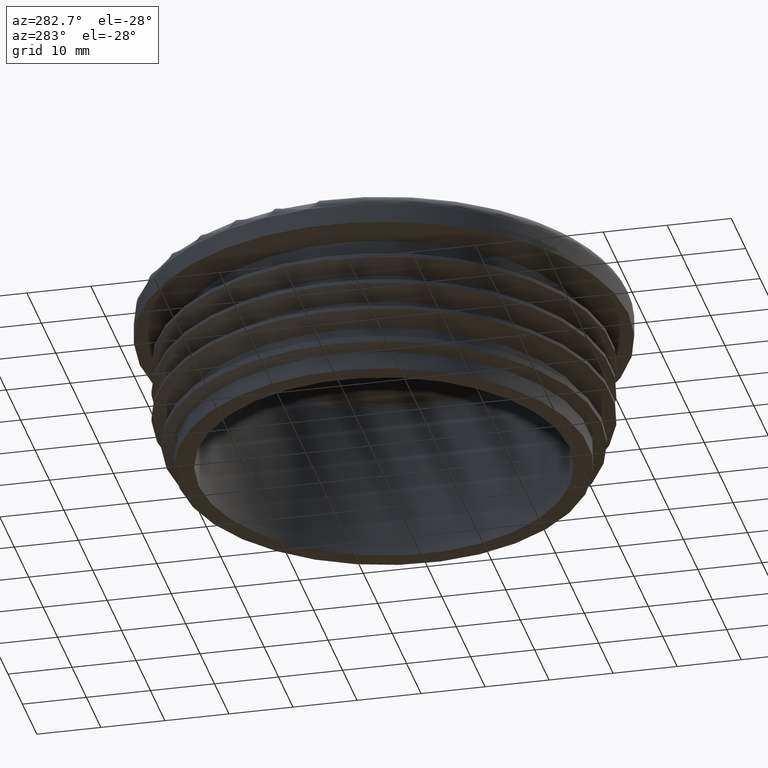
[diagram: clean part render]
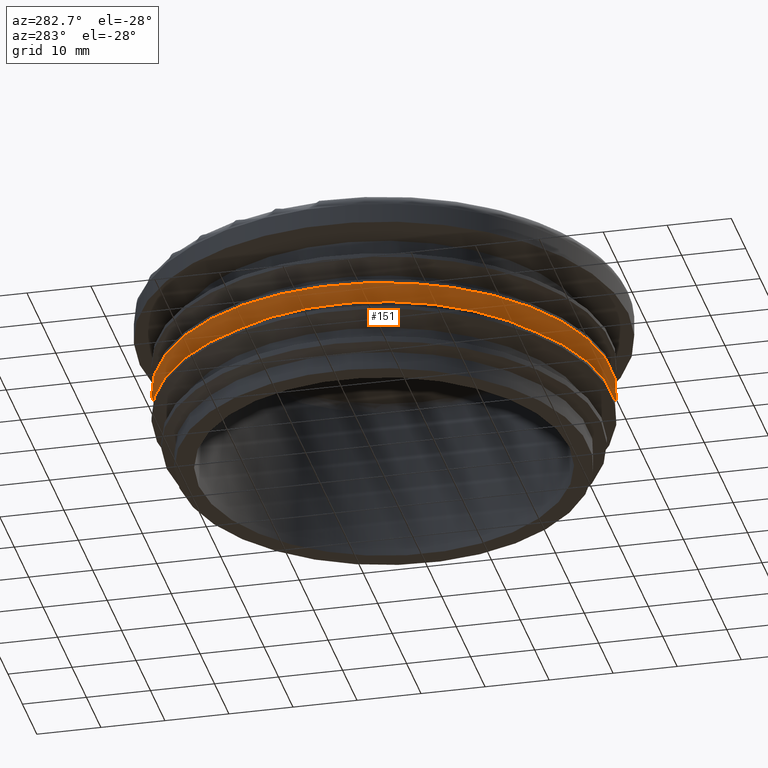
[diagram: same view with one face highlighted and labeled with its STEP entity id]
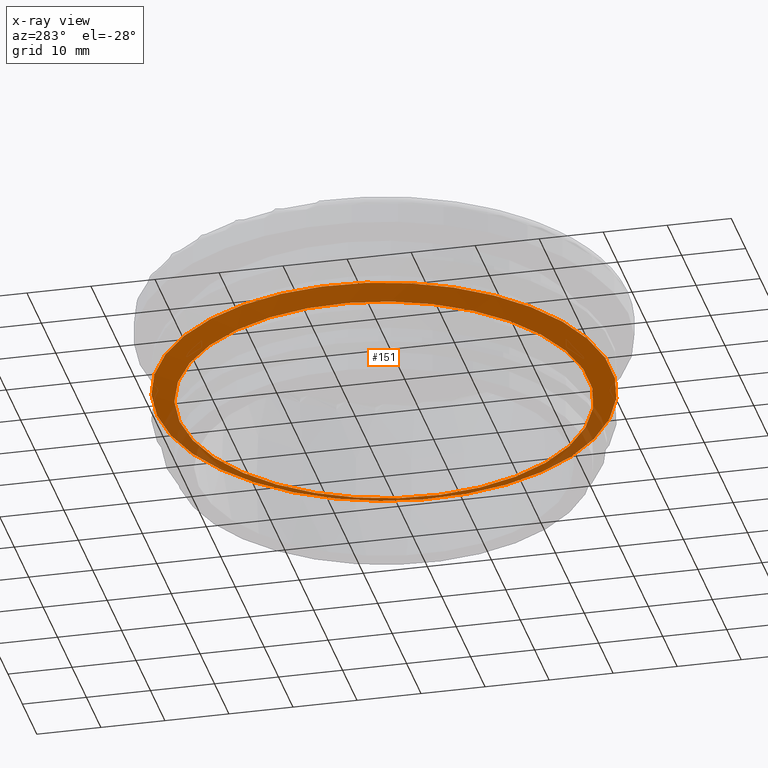
[diagram: x-ray of the same camera — body ghosted, the highlighted face saturated]
A machine part, auxiliary view. The second image highlights one B-rep face of the part: STEP entity #151.
The next image is the same camera in x-ray: the body ghosted, the highlighted face saturated — about 11% of this face is hidden behind the body in this view.
In plain terms, the highlighted conical surface has half-angle 68 deg.
Its self-contained STEP definition (entity closure, byte-faithful):
#151 = ADVANCED_FACE( '', ( #339, #340 ), #341, .T. );
#339 = FACE_BOUND( '', #811, .T. );
#340 = FACE_OUTER_BOUND( '', #812, .T. );
#341 = CONICAL_SURFACE( '', #813, 35.4500000000000, 1.18682389135615 );
#811 = EDGE_LOOP( '', ( #1481 ) );
#812 = EDGE_LOOP( '', ( #1482 ) );
#813 = AXIS2_PLACEMENT_3D( '', #1483, #1484, #1485 );
#1481 = ORIENTED_EDGE( '', *, *, #1691, .F. );
#1482 = ORIENTED_EDGE( '', *, *, #1692, .T. );
#1483 = CARTESIAN_POINT( '', ( 0.000000000000000, -5.56333046184742E-016, 12.9140917904230 ) );
#1484 = DIRECTION( '', ( 0.000000000000000, 6.12303176911189E-017, 1.00000000000000 ) );
#1485 = DIRECTION( '', ( 0.000000000000000, -1.00000000000000, 6.12303176911189E-017 ) );
#1691 = EDGE_CURVE( '', #1979, #1979, #1980, .T. );
#1692 = EDGE_CURVE( '', #1981, #1981, #1982, .T. );
#1979 = VERTEX_POINT( '', #3331 );
#1980 = CIRCLE( '', #3332, 31.9500000000000 );
#1981 = VERTEX_POINT( '', #3333 );
#1982 = CIRCLE( '', #3334, 35.4500000000000 );
#3331 = CARTESIAN_POINT( '', ( 0.000000000000000, 31.9500000000000, 11.5000000000000 ) );
#3332 = AXIS2_PLACEMENT_3D( '', #3443, #3444, #3445 );
#3333 = CARTESIAN_POINT( '', ( 0.000000000000000, 35.4500000000000, 12.9140917904230 ) );
#3334 = AXIS2_PLACEMENT_3D( '', #3446, #3447, #3448 );
#3443 = CARTESIAN_POINT( '', ( 0.000000000000000, -6.42918335756748E-016, 11.5000000000000 ) );
#3444 = DIRECTION( '', ( 0.000000000000000, -6.12303176911189E-017, -1.00000000000000 ) );
#3445 = DIRECTION( '', ( 0.000000000000000, 1.00000000000000, -6.12303176911189E-017 ) );
#3446 = CARTESIAN_POINT( '', ( 0.000000000000000, -5.56333046184742E-016, 12.9140917904230 ) );
#3447 = DIRECTION( '', ( 0.000000000000000, -6.12303176911189E-017, -1.00000000000000 ) );
#3448 = DIRECTION( '', ( 0.000000000000000, 1.00000000000000, -6.12303176911189E-017 ) );